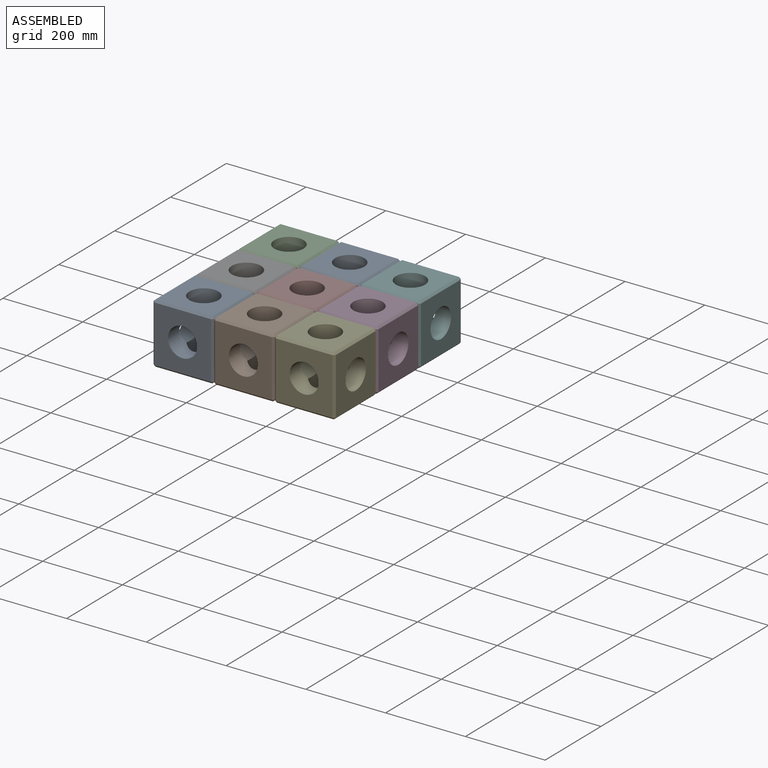
[diagram: assembled view]
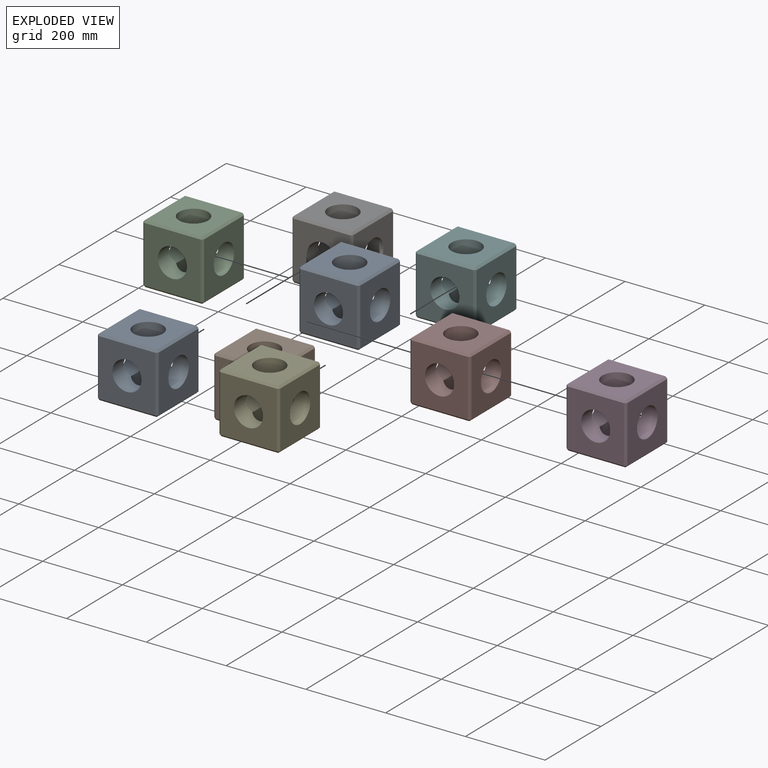
[diagram: exploded view]
GUIDED TOUR — MATED ASSEMBLY (Onshape document 835b094d6151cfeadd398ebb, AutoMate assembly 835b094d6151cfeadd398ebb_06ab03ab5000fc5c8c453f5f_b37c91ebca5f260ee9e40abb_default)

This assembly has 9 components, labeled P0..P8 below (a component is one placed occurrence of a part; the same part can appear more than once), held together by 24 mates. A mate is a constraint between two components; its type names the relative motion it leaves free:
  PLANAR — leaves sliding in the plane through the listed point (normal = the listed direction) and rotation about that normal free.
Axis/direction vectors are unit vectors and 'through' points are millimeter coordinates, both in the assembly's world frame.

MATES
  1. PLANAR "Planar 1": P0 <-> P6, direction (0.000, 1.000, 0.000) through (-519.58, -77.51, 768.10) mm
  2. PLANAR "Planar 10": P4 <-> P1, direction (0.000, -1.000, 0.000) through (-214.78, -229.91, 768.10) mm
  3. PLANAR "Planar 11": P4 <-> P1, direction (0.000, 0.000, 1.000) through (-214.78, -224.91, 773.10) mm
  4. PLANAR "Planar 21": P2 <-> P8, direction (1.000, 0.000, 0.000) through (-372.18, 222.29, 768.10) mm
  5. PLANAR "Planar 13": P3 <-> P7, direction (-1.000, 0.000, 0.000) through (-219.78, 69.89, 768.10) mm
  6. PLANAR "Planar 20": P2 <-> P8, direction (0.000, 0.000, 1.000) through (-377.18, 222.29, 773.10) mm
  7. PLANAR "Planar 5": P7 <-> P6, direction (0.000, 1.000, 0.000) through (-367.18, 74.89, 768.10) mm
  8. PLANAR "Planar 14": P3 <-> P4, direction (0.000, -1.000, 0.000) through (-72.38, -77.51, 768.10) mm
  9. PLANAR "Planar 9": P1 <-> P0, direction (-1.000, 0.000, 0.000) through (-372.18, -82.51, 768.10) mm
  10. PLANAR "Planar 8": P1 <-> P7, direction (0.000, 0.000, 1.000) through (-367.18, -82.51, 773.10) mm
  11. PLANAR "Planar 22": P8 <-> P5, direction (1.000, 0.000, 0.000) through (-219.78, 79.89, 768.10) mm
  12. PLANAR "Planar 24": P8 <-> P5, direction (0.000, 1.000, 0.000) through (-224.78, 227.29, 768.10) mm
  13. PLANAR "Planar 6": P7 <-> P6, direction (-1.000, 0.000, 0.000) through (-372.18, 69.89, 768.10) mm
  14. PLANAR "Planar 16": P5 <-> P3, direction (0.000, -1.000, 0.000) through (-72.38, 74.89, 768.10) mm
  15. PLANAR "Planar 12": P4 <-> P1, direction (-1.000, 0.000, 0.000) through (-219.78, -224.91, 768.10) mm
  16. PLANAR "Planar 2": P0 <-> P6, direction (1.000, 0.000, 0.000) through (-372.18, -82.51, 625.70) mm
  17. PLANAR "Planar 19": P2 <-> P8, direction (0.000, 1.000, 0.000) through (-377.18, 227.29, 768.10) mm
  18. PLANAR "Planar 3": P6 <-> P0, direction (0.000, 0.000, 1.000) through (-519.58, -72.51, 773.10) mm
  19. PLANAR "Planar 17": P5 <-> P3, direction (1.000, 0.000, 0.000) through (-67.38, 79.89, 768.10) mm
  20. PLANAR "Planar 18": P5 <-> P3, direction (0.000, 0.000, 1.000) through (-72.38, 79.89, 773.10) mm
  21. PLANAR "Planar 4": P6 <-> P7, direction (0.000, 0.000, 1.000) through (-377.18, 69.89, 773.10) mm
  22. PLANAR "Planar 23": P8 <-> P5, direction (0.000, 0.000, 1.000) through (-224.78, 79.89, 773.10) mm
  23. PLANAR "Planar 15": P3 <-> P7, direction (0.000, 0.000, 1.000) through (-214.78, 69.89, 773.10) mm
  24. PLANAR "Planar 7": P1 <-> P7, direction (0.000, 1.000, 0.000) through (-367.18, -77.51, 768.10) mm

ASSEMBLY ORDER
  1. P8 — the base component [order verified]
  2. P7 [order verified]
  3. P1 [order verified]
  4. P4 [order verified]
  5. P3 [order verified]
  6. P5 [order verified]
  7. P2 [order verified]
  8. P6 [order verified]
  9. P0 [order verified]
Order-tag legend:
  [order verified] — this step's position reverses a verified removal order: the component was checked to insert without passing through the ones already placed.

Of the 9 components, 9 carry the full construction recipe — the FeatureScript program that regenerates the part's solid from scratch; the rest are supplied as boundary geometry only.
Each toured component is shown spotlighted twice — in the assembled view, then in the exploded view, where a leader line traces a displaced component back to its assembled socket (saturated green if recipe-attached, orange if geometry-only; every other component desaturated gray) — followed by its recipe or geometry summary and the mates that hold it.
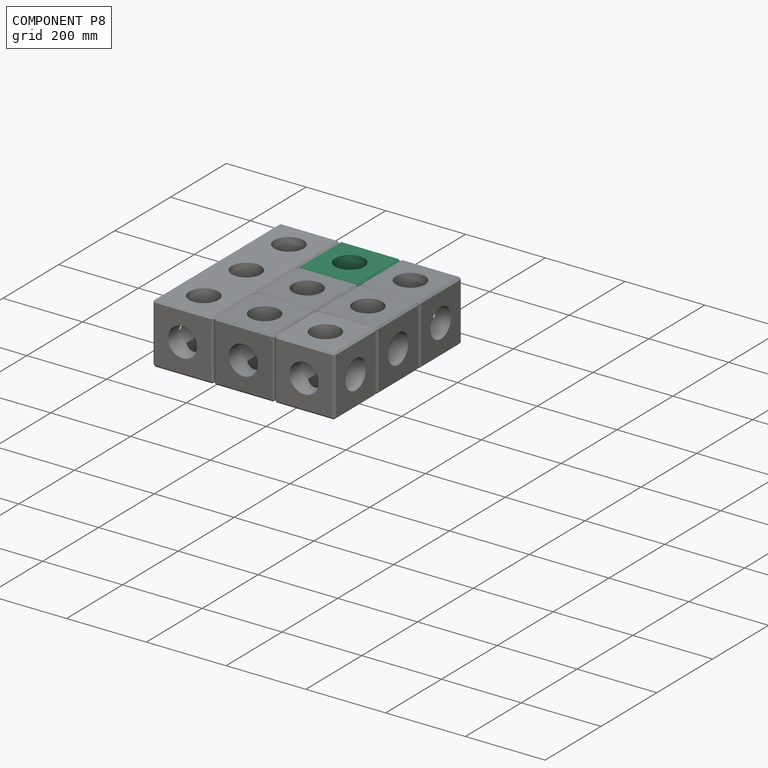
[diagram: component P8 — assembled]
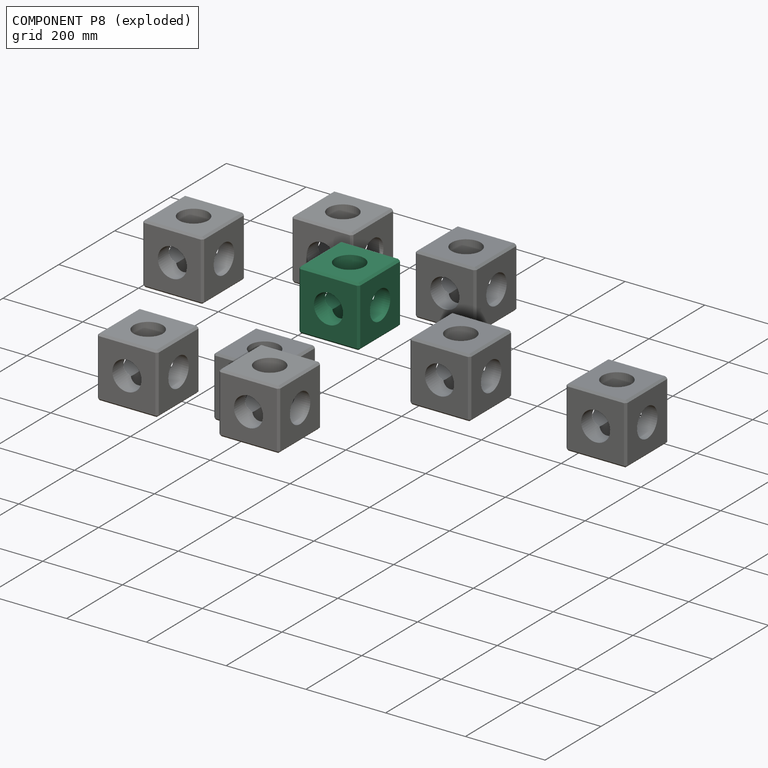
[diagram: component P8 — exploded]
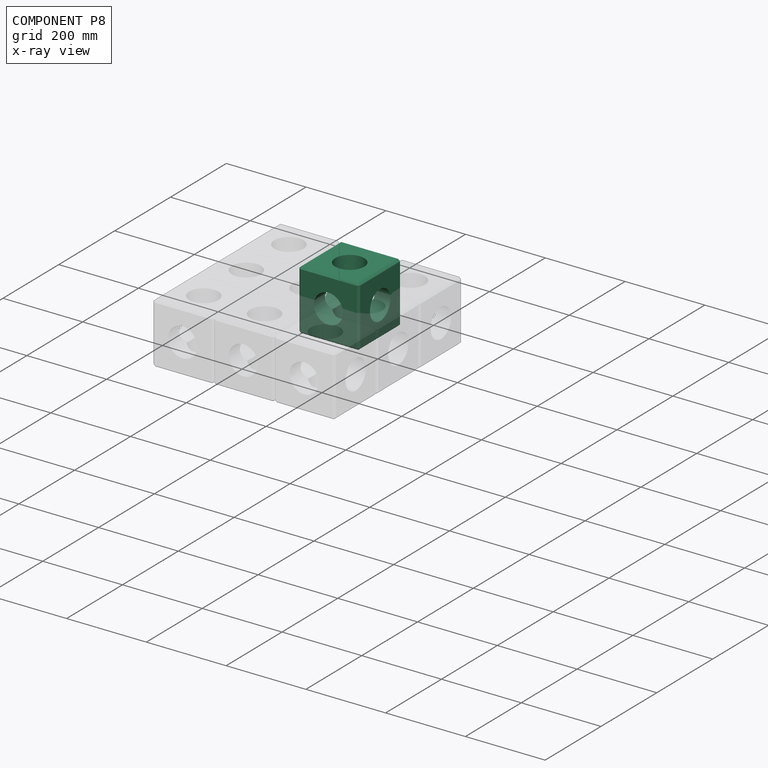
[diagram: component P8 — x-ray view]
COMPONENT P8 — same part as P0 (CADFS 00886171); its construction recipe is shown at P0.
Held by: PLANAR mate "Planar 21" to P2; PLANAR mate "Planar 20" to P2; PLANAR mate "Planar 22" to P5; PLANAR mate "Planar 24" to P5; PLANAR mate "Planar 19" to P2; PLANAR mate "Planar 23" to P5.
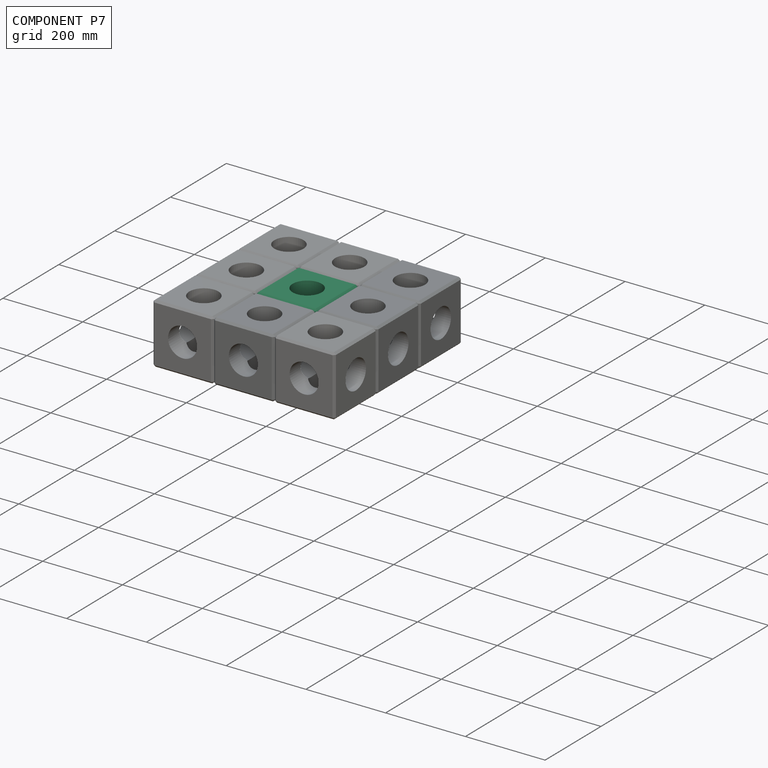
[diagram: component P7 — assembled]
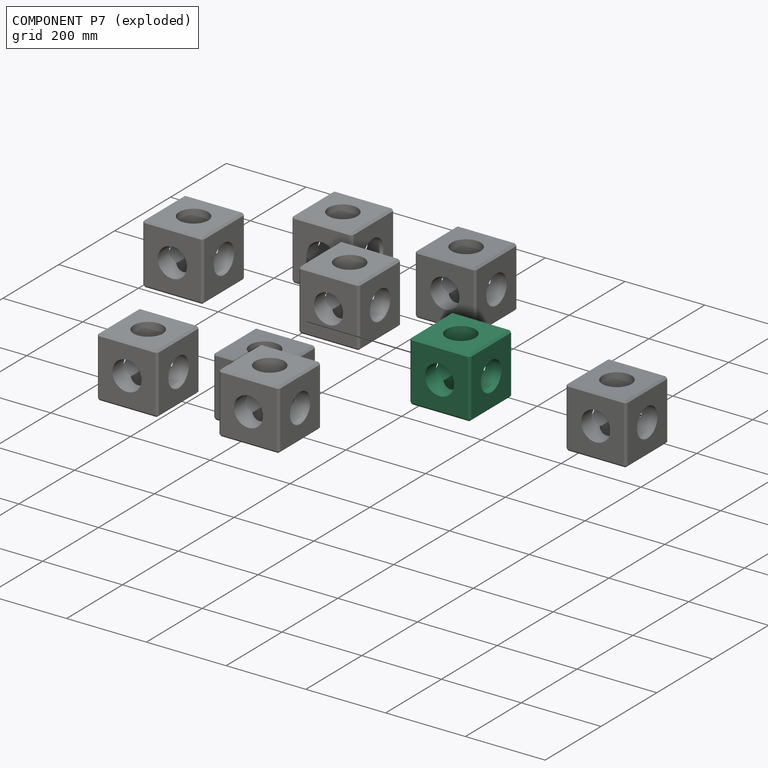
[diagram: component P7 — exploded]
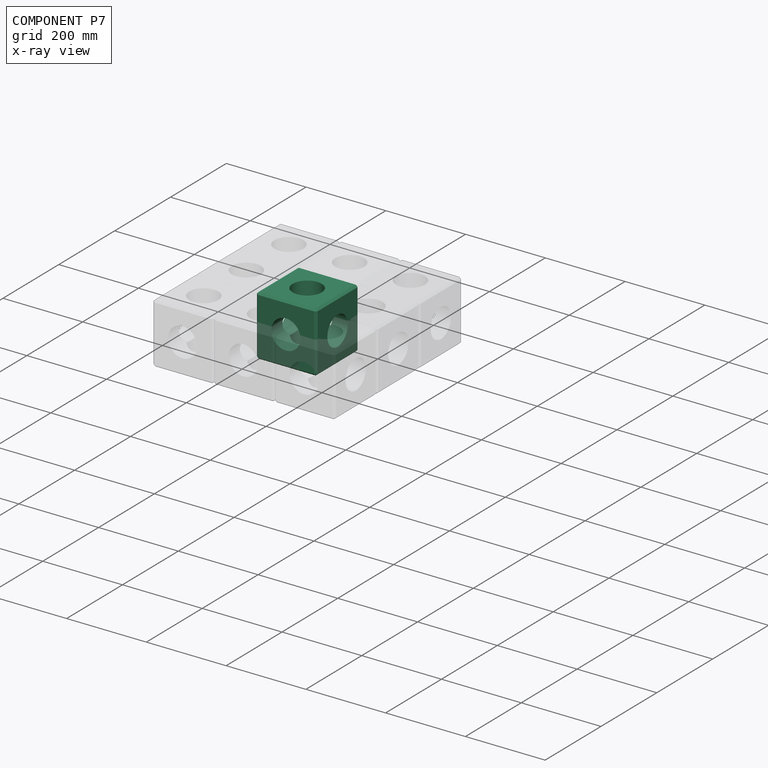
[diagram: component P7 — x-ray view]
COMPONENT P7 — same part as P0 (CADFS 00886171); its construction recipe is shown at P0.
Held by: PLANAR mate "Planar 13" to P3; PLANAR mate "Planar 5" to P6; PLANAR mate "Planar 8" to P1; PLANAR mate "Planar 6" to P6; PLANAR mate "Planar 4" to P6; PLANAR mate "Planar 15" to P3; PLANAR mate "Planar 7" to P1.
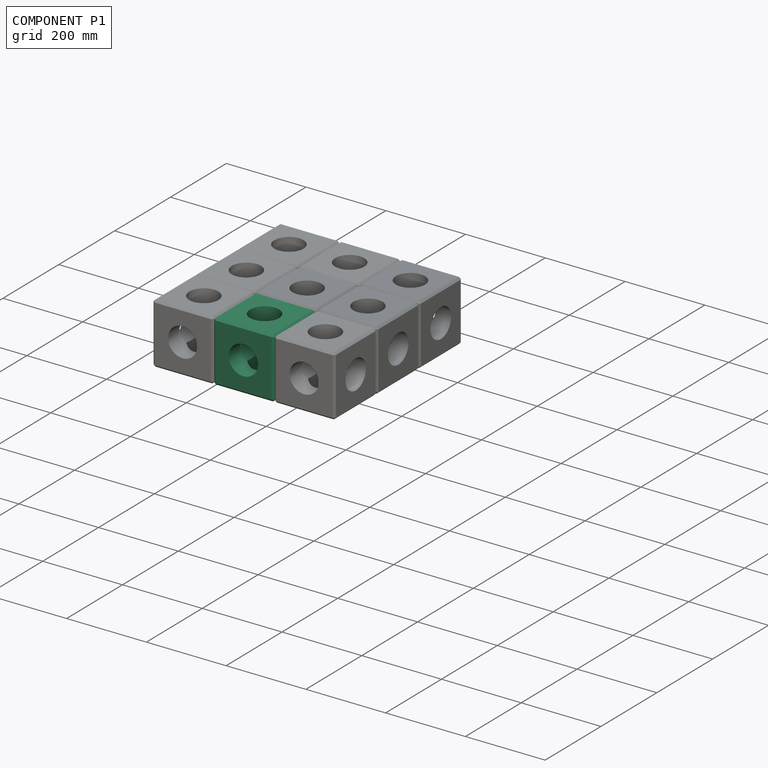
[diagram: component P1 — assembled]
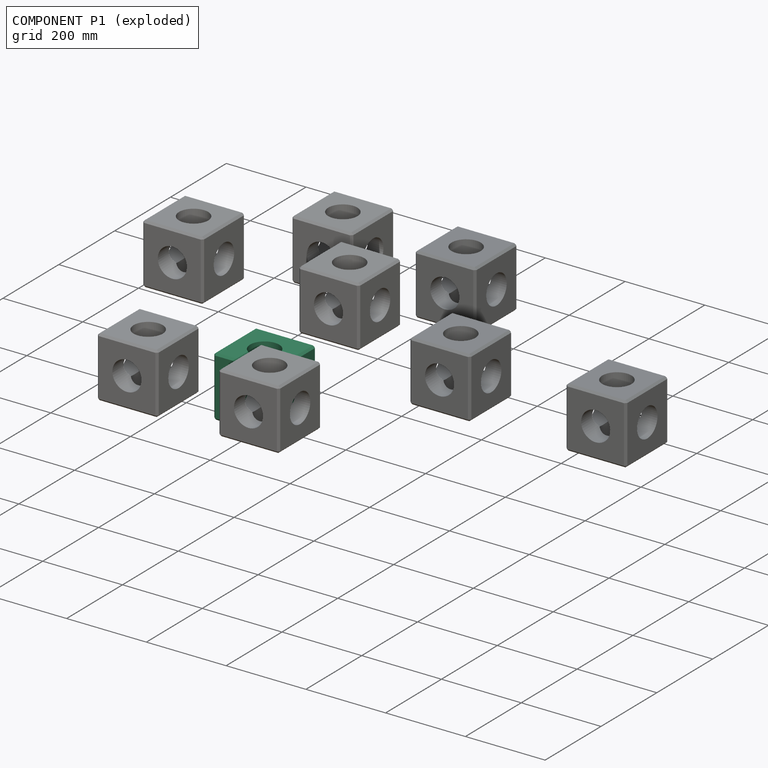
[diagram: component P1 — exploded]
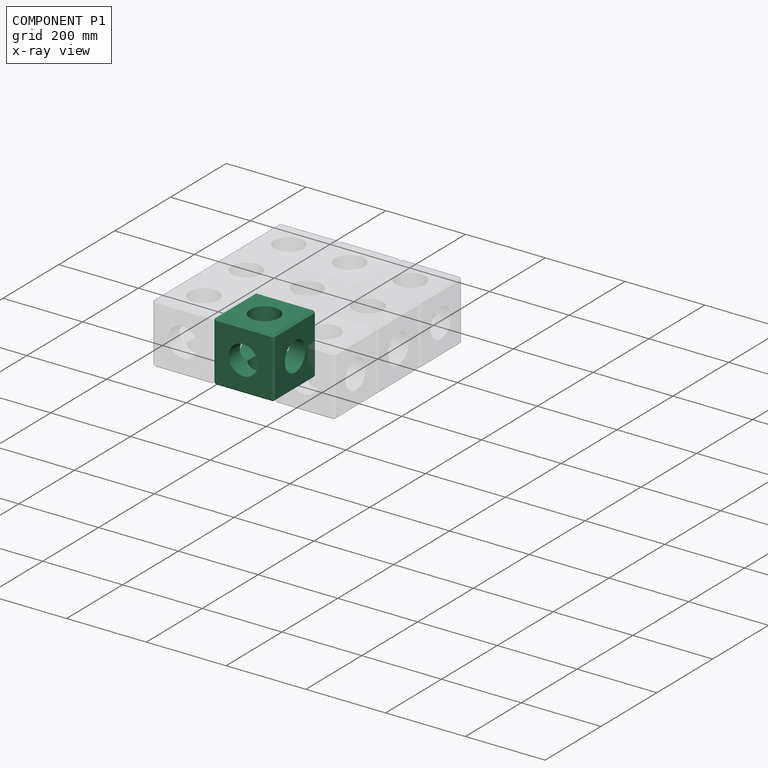
[diagram: component P1 — x-ray view]
COMPONENT P1 — same part as P0 (CADFS 00886171); its construction recipe is shown at P0.
Held by: PLANAR mate "Planar 10" to P4; PLANAR mate "Planar 11" to P4; PLANAR mate "Planar 9" to P0; PLANAR mate "Planar 8" to P7; PLANAR mate "Planar 12" to P4; PLANAR mate "Planar 7" to P7.
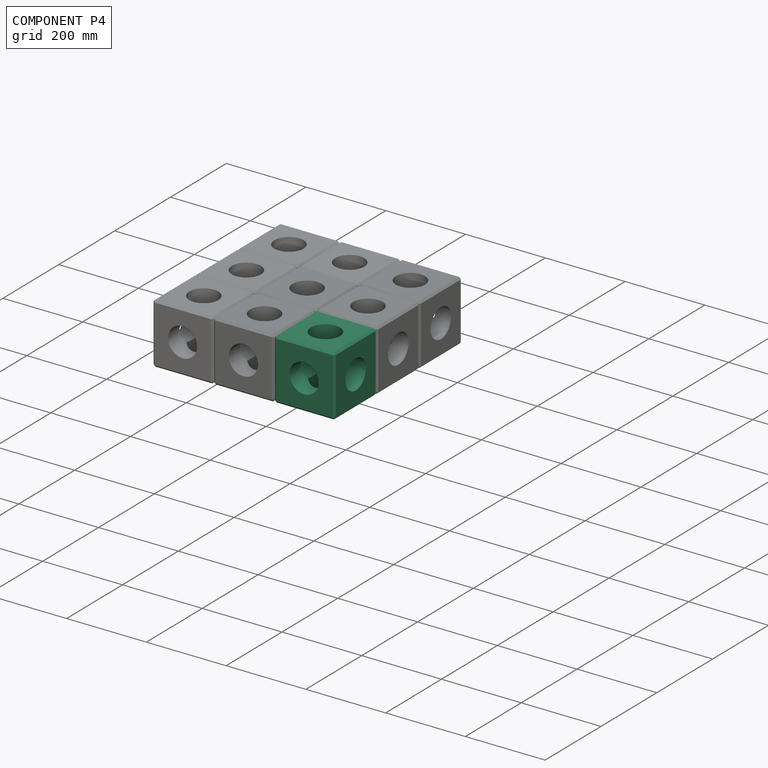
[diagram: component P4 — assembled]
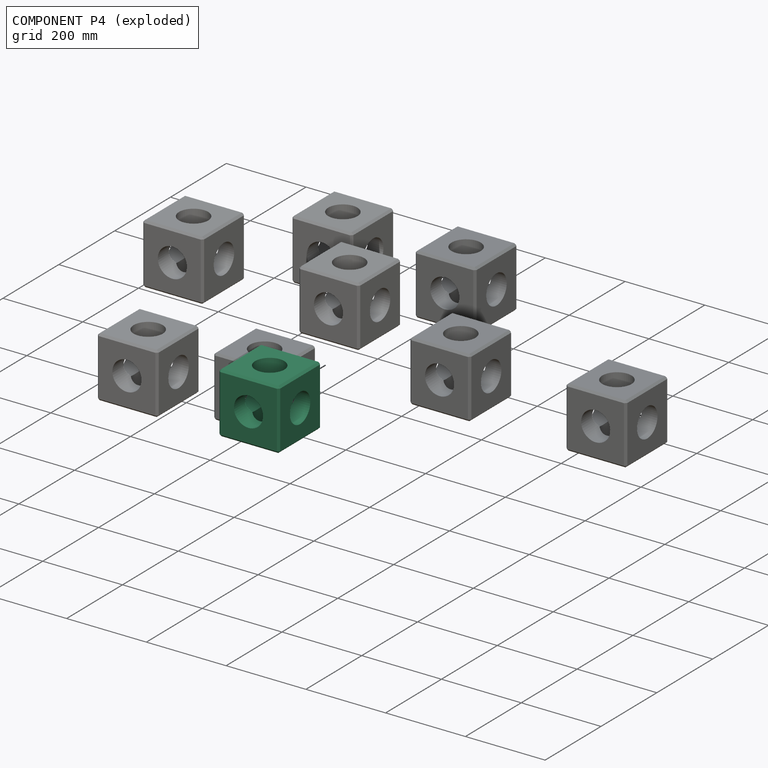
[diagram: component P4 — exploded]
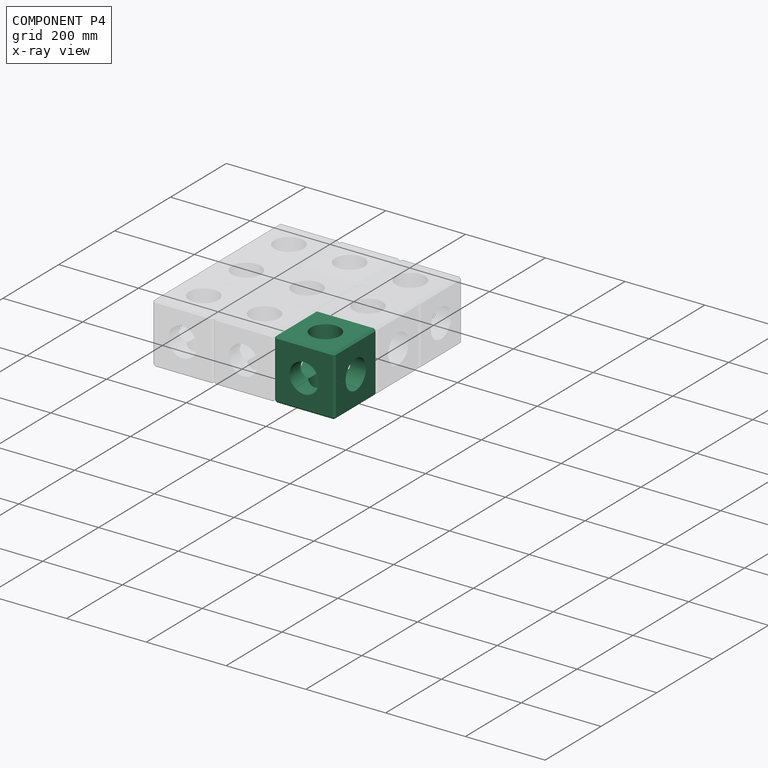
[diagram: component P4 — x-ray view]
COMPONENT P4 — same part as P0 (CADFS 00886171); its construction recipe is shown at P0.
Held by: PLANAR mate "Planar 10" to P1; PLANAR mate "Planar 11" to P1; PLANAR mate "Planar 14" to P3; PLANAR mate "Planar 12" to P1.
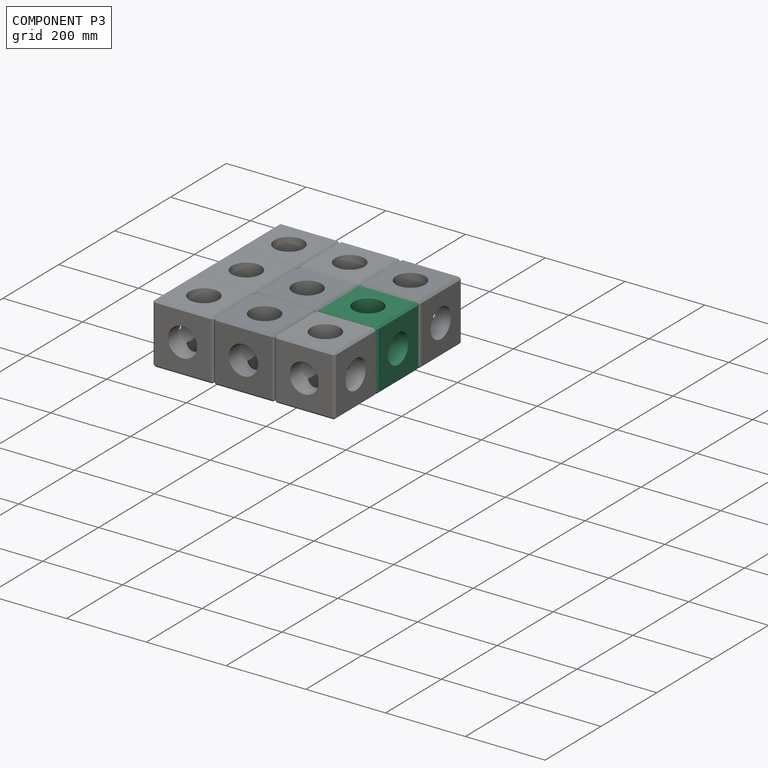
[diagram: component P3 — assembled]
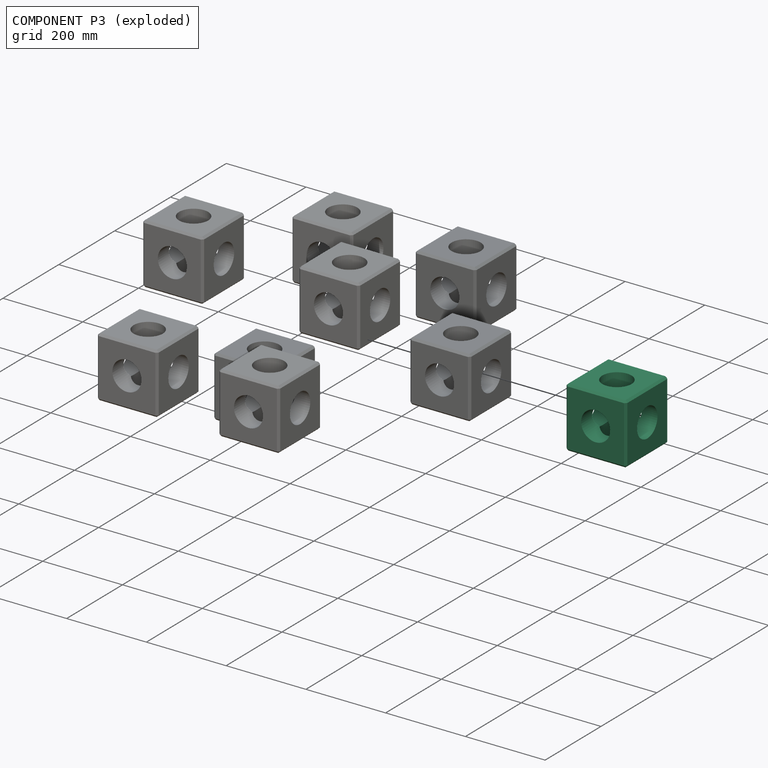
[diagram: component P3 — exploded]
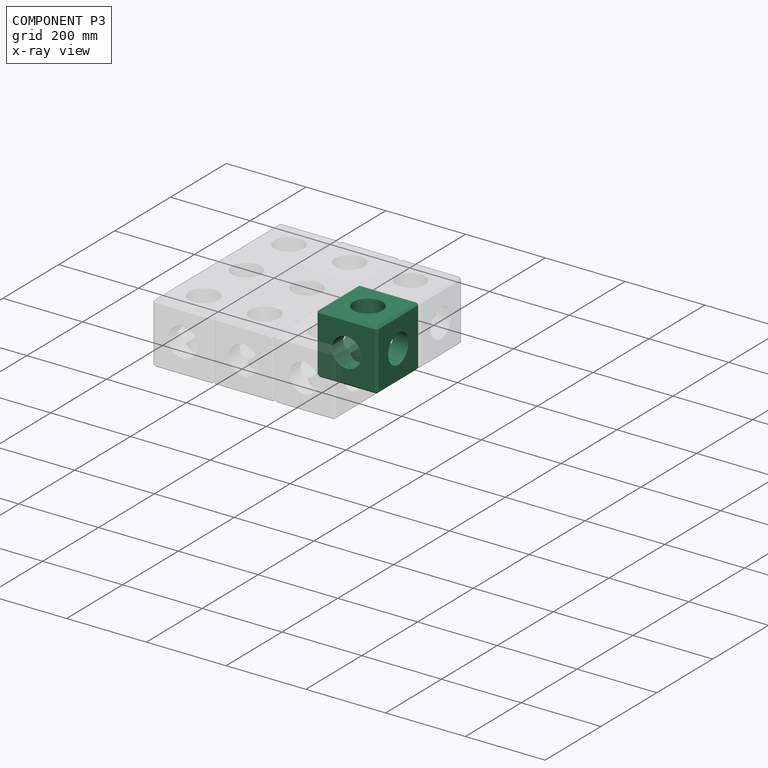
[diagram: component P3 — x-ray view]
COMPONENT P3 — same part as P0 (CADFS 00886171); its construction recipe is shown at P0.
Held by: PLANAR mate "Planar 13" to P7; PLANAR mate "Planar 14" to P4; PLANAR mate "Planar 16" to P5; PLANAR mate "Planar 17" to P5; PLANAR mate "Planar 18" to P5; PLANAR mate "Planar 15" to P7.
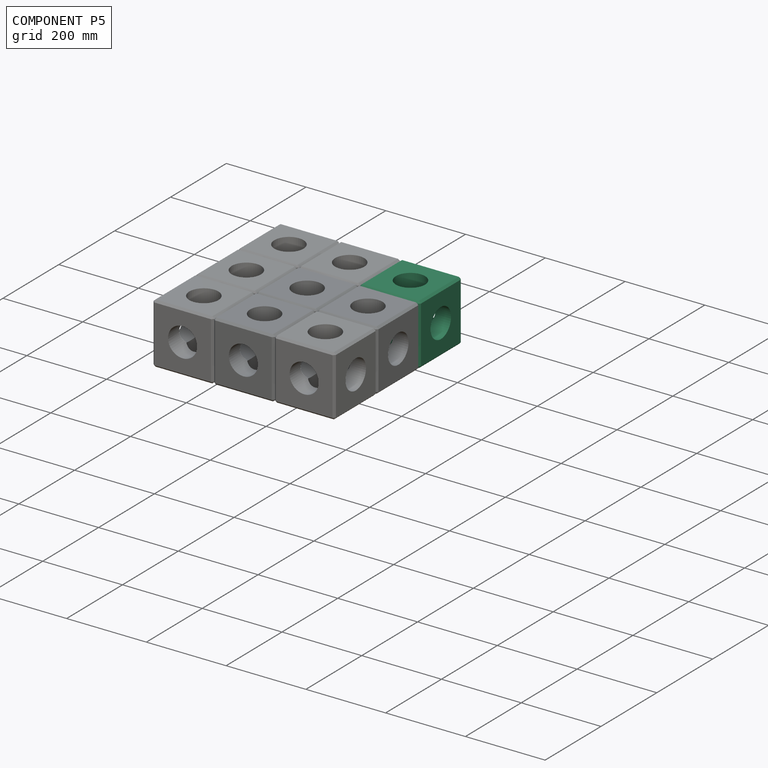
[diagram: component P5 — assembled]
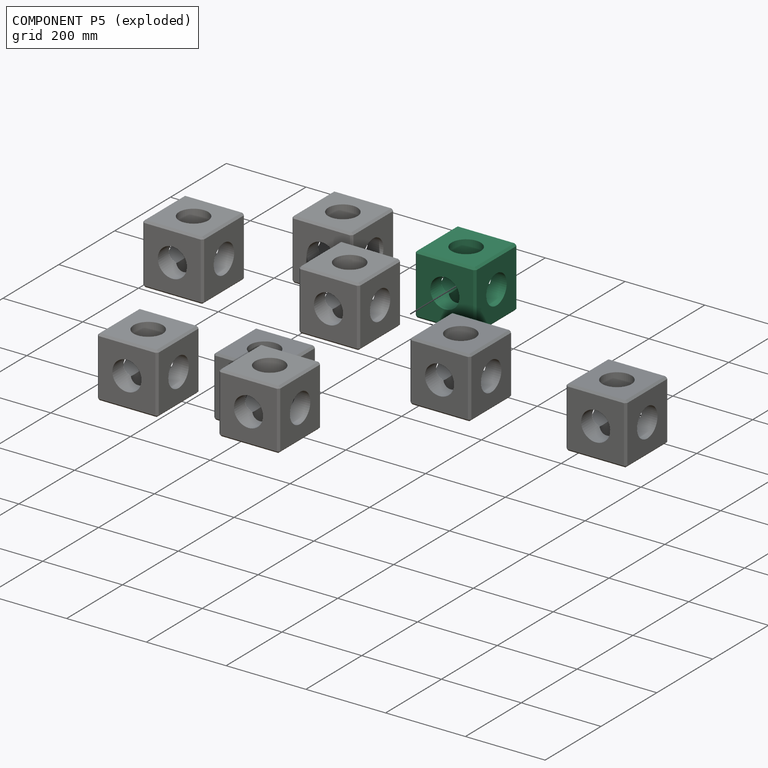
[diagram: component P5 — exploded]
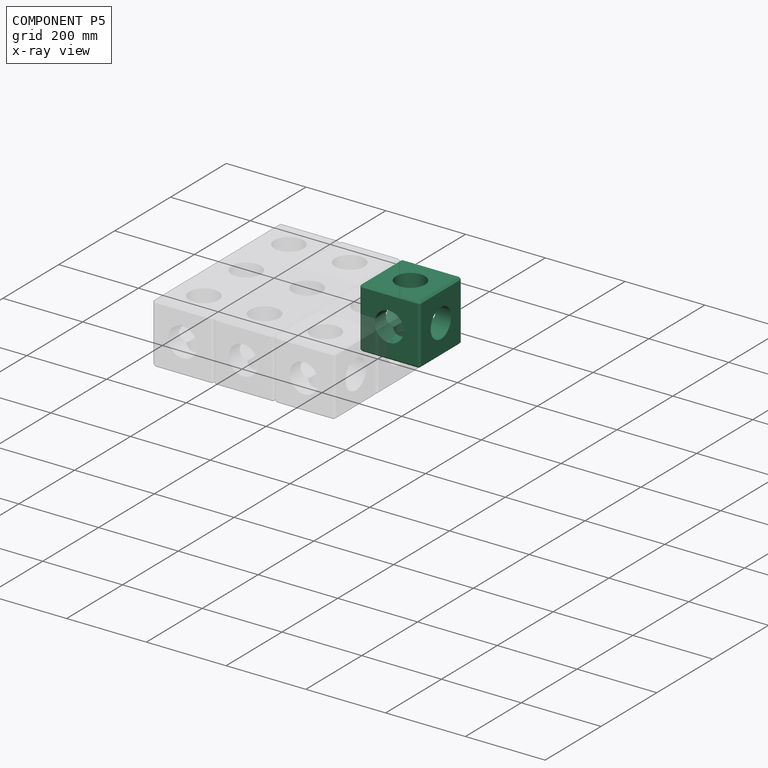
[diagram: component P5 — x-ray view]
COMPONENT P5 — same part as P0 (CADFS 00886171); its construction recipe is shown at P0.
Held by: PLANAR mate "Planar 22" to P8; PLANAR mate "Planar 24" to P8; PLANAR mate "Planar 16" to P3; PLANAR mate "Planar 17" to P3; PLANAR mate "Planar 18" to P3; PLANAR mate "Planar 23" to P8.
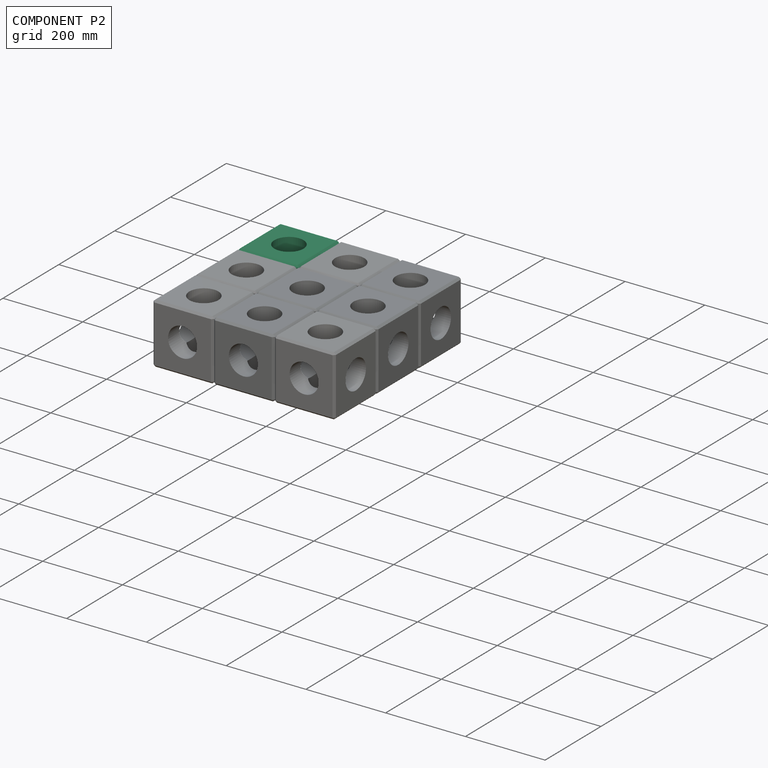
[diagram: component P2 — assembled]
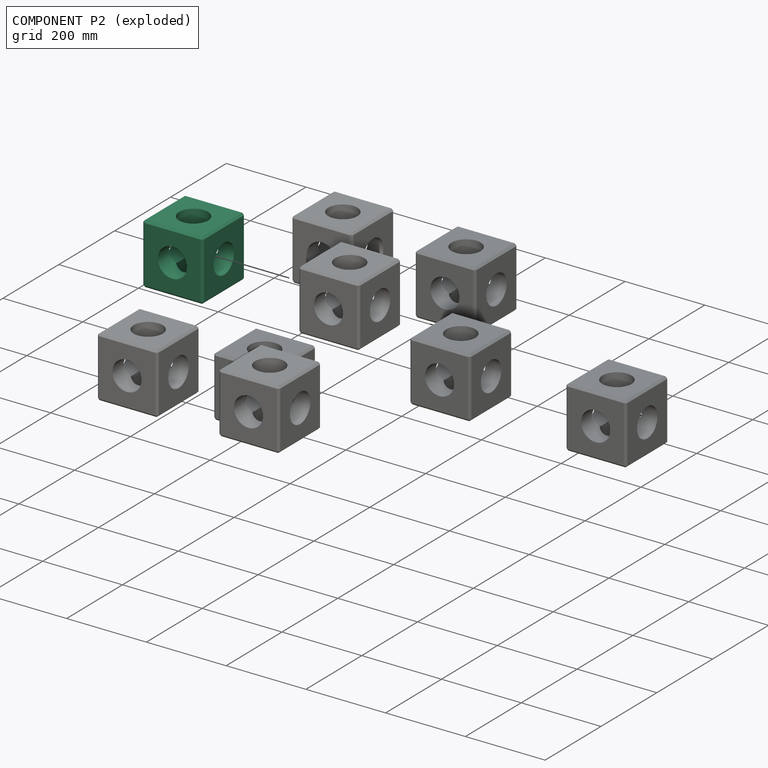
[diagram: component P2 — exploded]
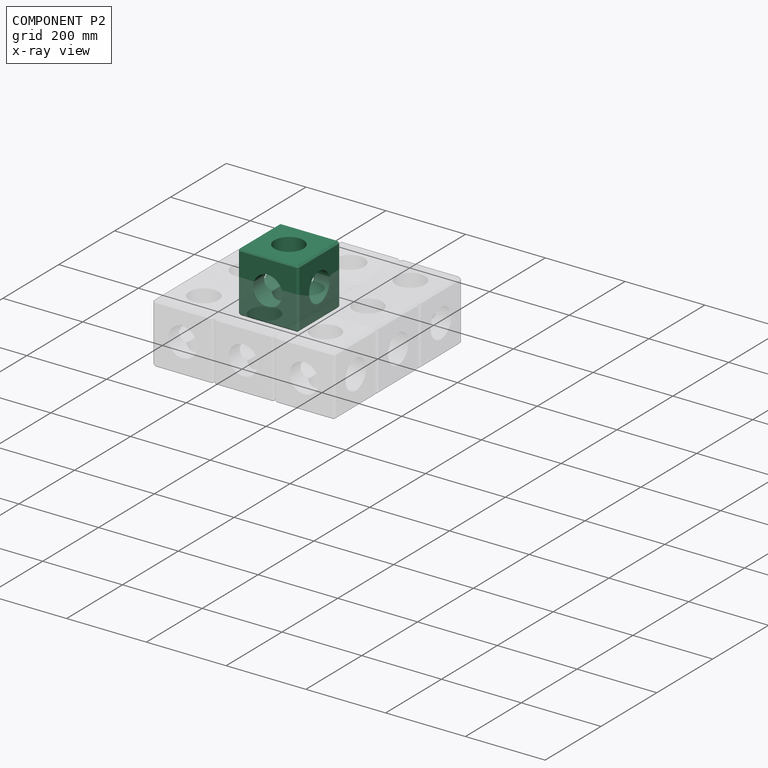
[diagram: component P2 — x-ray view]
COMPONENT P2 — same part as P0 (CADFS 00886171); its construction recipe is shown at P0.
Held by: PLANAR mate "Planar 21" to P8; PLANAR mate "Planar 20" to P8; PLANAR mate "Planar 19" to P8.
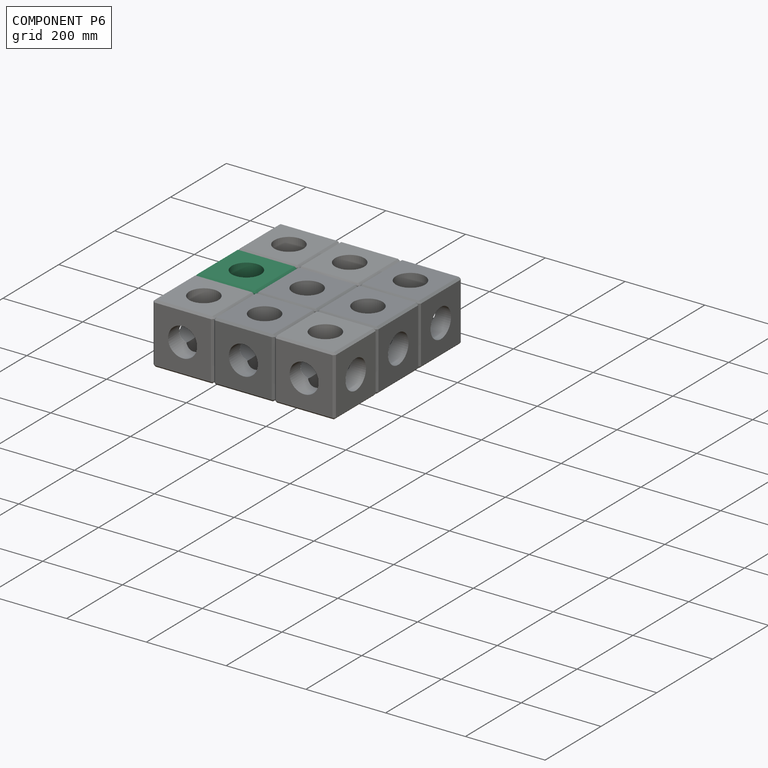
[diagram: component P6 — assembled]
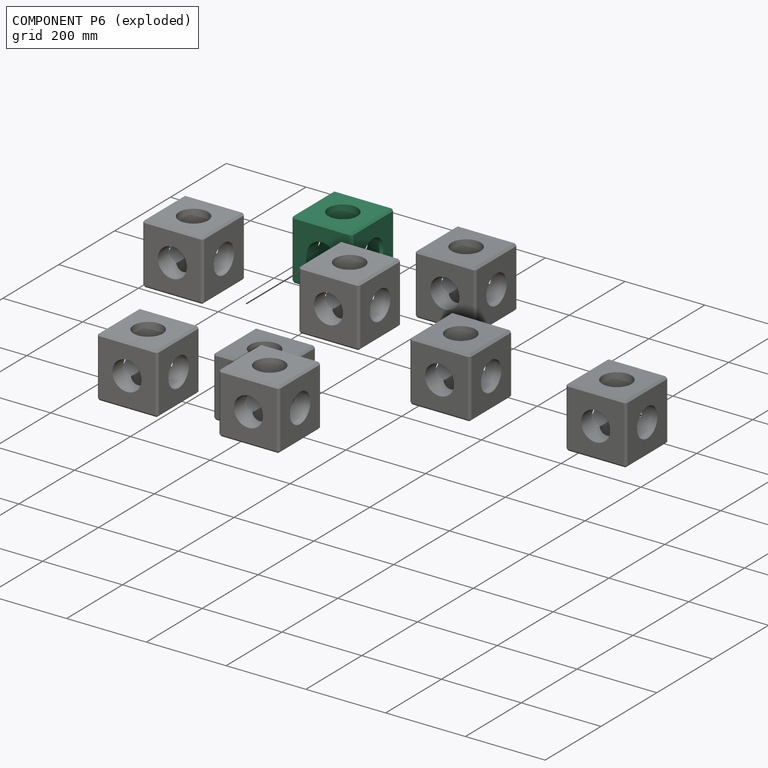
[diagram: component P6 — exploded]
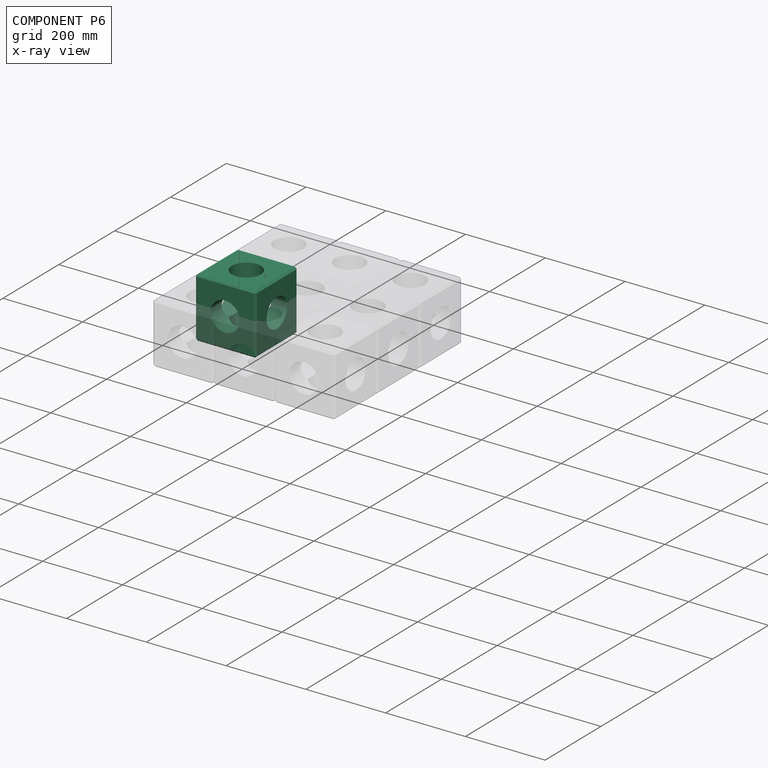
[diagram: component P6 — x-ray view]
COMPONENT P6 — same part as P0 (CADFS 00886171); its construction recipe is shown at P0.
Held by: PLANAR mate "Planar 1" to P0; PLANAR mate "Planar 5" to P7; PLANAR mate "Planar 6" to P7; PLANAR mate "Planar 2" to P0; PLANAR mate "Planar 3" to P0; PLANAR mate "Planar 4" to P7.
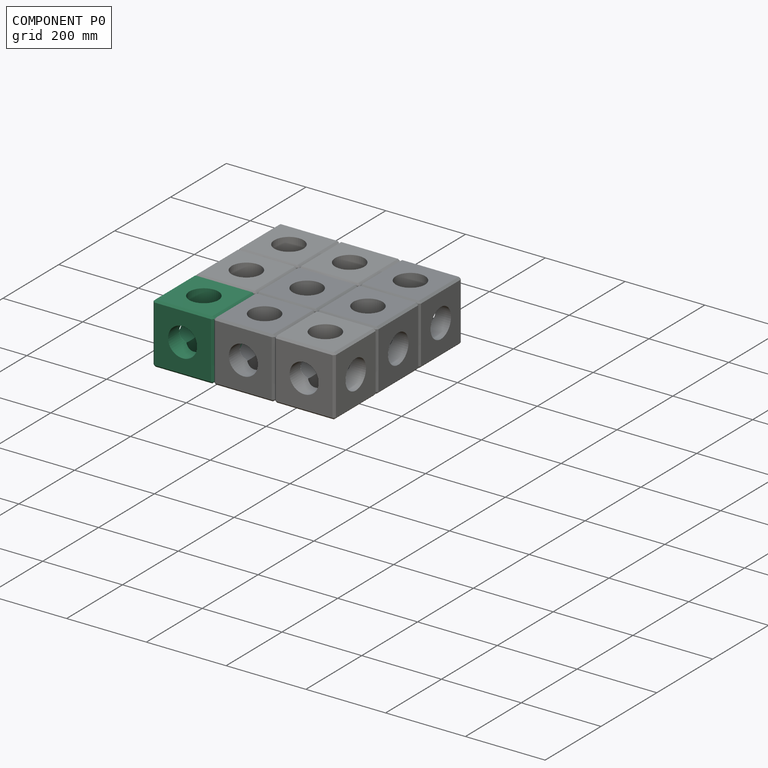
[diagram: component P0 — assembled]
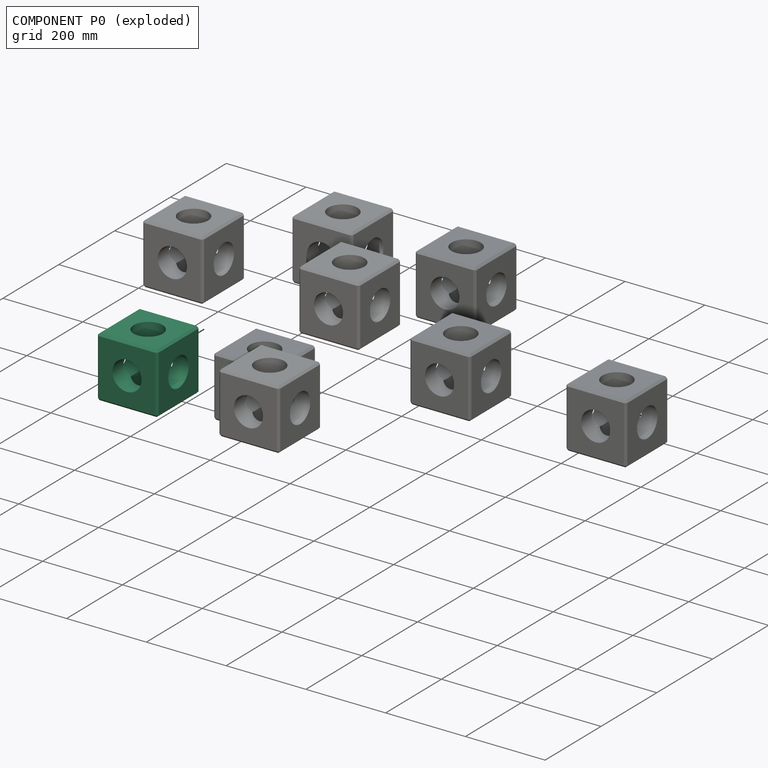
[diagram: component P0 — exploded]
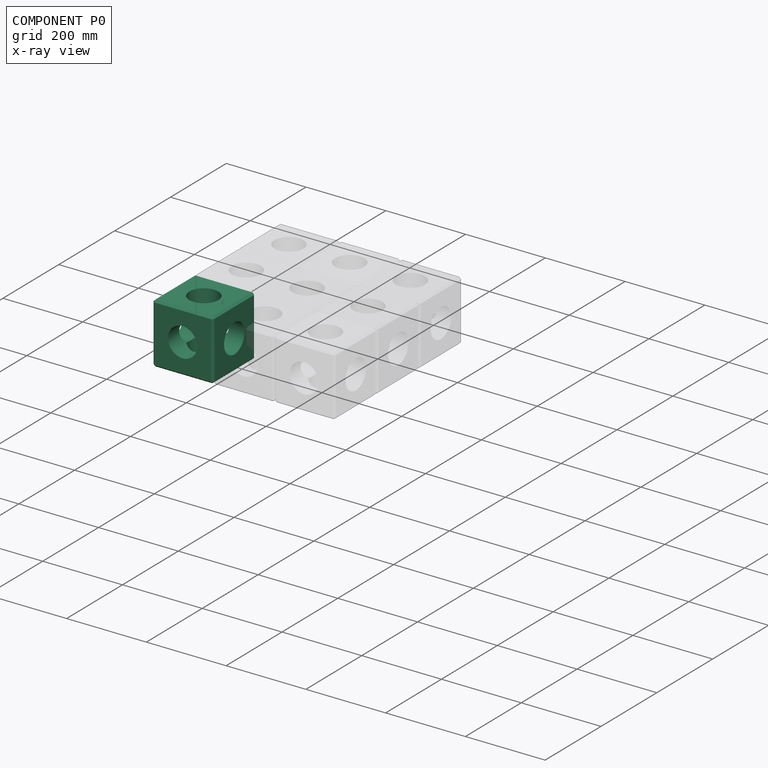
[diagram: component P0 — x-ray view]
COMPONENT P0 — recipe-attached (CADFS 00886171, mesh-verified: the recipe's output STEP matches this component's geometry to below the mesh-comparison resolution (tessellation chordal tolerance ~0.396 mm)).
Held by: PLANAR mate "Planar 1" to P6; PLANAR mate "Planar 9" to P1; PLANAR mate "Planar 2" to P6; PLANAR mate "Planar 3" to P6.
Construction recipe (FeatureScript — the CAD program that rebuilds this solid; sketch coordinates are in the units given by the * unit suffixes, e.g. mm):

FeatureScript 1511;
import(path : "onshape/std/geometry.fs", version : "1511.0");
import(path : "onshape/std/common.fs", version : "1511.0");
const mm = millimeter;
const VERTEX = EntityType.VERTEX;
const EDGE = EntityType.EDGE;
const FACE = EntityType.FACE;
const BODY = EntityType.BODY;
function v(x, y){return vector(x, y);}
function OD(order){return orderDisambiguation(order);}
function OSD(set){return originalSetDisambiguation(set);}
function TD(topology){return topologyDisambiguation(topology);}
function TDD(query){return trueDependencyDisambiguation(query);}
function sQuery(a, b, c) {return sketchEntityQuery(a, b, c);}

annotation { "Feature Type Name" : "Feature", "Feature Type Description" : "" }
export const myFeature = defineFeature(function(context is Context, id is Id, definition is map)
    precondition{}
    {
        {
            var Q0;
            Q0=qCreatedBy(makeId("Front.planeOp"),FACE);
            var sketch = newSketch(context, id + "F0", { "sketchPlane" : qUnion([Q0])});
            skLineSegment(sketch, "E0.bottom", {"start": v(-76.2, 76.2) * mm, "end": v(76.2, 76.2) * mm});
            skLineSegment(sketch, "E0.top", {"start": v(-76.2, -76.2) * mm, "end": v(76.2, -76.2) * mm});
            skLineSegment(sketch, "E0.left", {"start": v(-76.2, 76.2) * mm, "end": v(-76.2, -76.2) * mm});
            skLineSegment(sketch, "E0.right", {"start": v(76.2, 76.2) * mm, "end": v(76.2, -76.2) * mm});
            skSolve(sketch);
        }
        {
            var Q0;
            Q0=makeQuery(id+"F0.imprint","IMPRINT",FACE,{"disambiguationData":[TD([[makeQuery(id+"F0.imprint","IMPRINT",EDGE,{"derivedFrom":sQuery(id+"F0.wireOp",EDGE,"E0.bottom")}),-1.0]])]});
            extrude(context, id + "F1", {"entities" : qUnion([Q0]), "depth" : 152.4 * mm, "offsetDistance" : 25.4 * mm});
        }
        {
            var Q0;
            Q0=makeQuery(id+"F1.opExtrude","CAP_EDGE",EDGE,{"disambiguationData":[OSD([sQuery(id+"F0.wireOp",EDGE,"E0.bottom")])],"isStart":false});
            var Q1;
            Q1=makeQuery(id+"F1.opExtrude","SWEPT_EDGE",EDGE,{"disambiguationData":[OSD([sQuery(id+"F0.wireOp",EDGE,"E0.bottom"),sQuery(id+"F0.wireOp",EDGE,"E0.left")])]});
            var Q2;
            Q2=makeQuery(id+"F1.opExtrude","SWEPT_EDGE",EDGE,{"disambiguationData":[OSD([sQuery(id+"F0.wireOp",EDGE,"E0.bottom"),sQuery(id+"F0.wireOp",EDGE,"E0.right")])]});
            var Q3;
            Q3=makeQuery(id+"F1.opExtrude","CAP_EDGE",EDGE,{"disambiguationData":[OSD([sQuery(id+"F0.wireOp",EDGE,"E0.bottom")])],"isStart":true});
            var Q4;
            Q4=makeQuery(id+"F1.opExtrude","CAP_EDGE",EDGE,{"disambiguationData":[OSD([sQuery(id+"F0.wireOp",EDGE,"E0.right")])],"isStart":false});
            var Q5;
            Q5=makeQuery(id+"F1.opExtrude","CAP_EDGE",EDGE,{"disambiguationData":[OSD([sQuery(id+"F0.wireOp",EDGE,"E0.left")])],"isStart":false});
            var Q6;
            Q6=makeQuery(id+"F1.opExtrude","CAP_EDGE",EDGE,{"disambiguationData":[OSD([sQuery(id+"F0.wireOp",EDGE,"E0.top")])],"isStart":false});
            var Q7;
            Q7=makeQuery(id+"F1.opExtrude","SWEPT_EDGE",EDGE,{"disambiguationData":[OSD([sQuery(id+"F0.wireOp",EDGE,"E0.top"),sQuery(id+"F0.wireOp",EDGE,"E0.right")])]});
            var Q8;
            Q8=makeQuery(id+"F1.opExtrude","CAP_EDGE",EDGE,{"disambiguationData":[OSD([sQuery(id+"F0.wireOp",EDGE,"E0.right")])],"isStart":true});
            var Q9;
            Q9=makeQuery(id+"F1.opExtrude","CAP_EDGE",EDGE,{"disambiguationData":[OSD([sQuery(id+"F0.wireOp",EDGE,"E0.left")])],"isStart":true});
            var Q10;
            Q10=makeQuery(id+"F1.opExtrude","CAP_EDGE",EDGE,{"disambiguationData":[OSD([sQuery(id+"F0.wireOp",EDGE,"E0.top")])],"isStart":true});
            var Q11;
            Q11=makeQuery(id+"F1.opExtrude","SWEPT_EDGE",EDGE,{"disambiguationData":[OSD([sQuery(id+"F0.wireOp",EDGE,"E0.top"),sQuery(id+"F0.wireOp",EDGE,"E0.left")])]});
            chamfer(context, id + "F2", {"entities" : qUnion([Q0, Q1, Q2, Q3, Q4, Q5, Q6, Q7, Q8, Q9, Q10, Q11]), "width" : 5 * mm, "tangentPropagation" : true});
        }
        {
            var Q0;
            Q0=makeQuery(id+"F1.opExtrude","CAP_FACE",FACE,{"disambiguationData":[OSD([sQuery(id+"F0.wireOp",EDGE,"E0.bottom"),sQuery(id+"F0.wireOp",EDGE,"E0.top"),sQuery(id+"F0.wireOp",EDGE,"E0.left"),sQuery(id+"F0.wireOp",EDGE,"E0.right")])],"isStart":true});
            var sketch = newSketch(context, id + "F3", { "sketchPlane" : qUnion([Q0])});
            skCircle(sketch, "E1", {"center": v(0, 0) * mm, "radius": 36.5 * mm});
            skLineSegment(sketch, "E2", {"start": v(71.2, -71.2) * mm, "end": v(-71.2, 71.2) * mm, "construction": true});
            skSolve(sketch);
        }
        {
            var Q0;
            Q0=makeQuery(id+"F3.imprint","IMPRINT",FACE,{"disambiguationData":[TD([[makeQuery(id+"F3.imprint","IMPRINT",EDGE,{"derivedFrom":sQuery(id+"F3.wireOp",EDGE,"E1")}),1.0]])]});
            extrude(context, id + "F4", {"entities" : qUnion([Q0]), "operationType" : NewBodyOperationType.REMOVE, "endBound" : BoundingType.THROUGH_ALL, "oppositeDirection" : true, "depth" : 25 * mm, "offsetDistance" : 25 * mm});
        }
        {
            var Q0;
            Q0=makeQuery(id+"F1.opExtrude","SWEPT_FACE",FACE,{"disambiguationData":[OSD([sQuery(id+"F0.wireOp",EDGE,"E0.top")])]});
            var sketch = newSketch(context, id + "F5", { "sketchPlane" : qUnion([Q0])});
            skPoint(sketch, "E3", {"position": v(0, 76.2) * mm});
            skLineSegment(sketch, "E4", {"start": v(-71.2, 147.4) * mm, "end": v(71.2, 5) * mm, "construction": true});
            skSolve(sketch);
        }
        {
            var Q0;
            Q0=makeQuery(id+"F1.opExtrude","SWEPT_FACE",FACE,{"disambiguationData":[OSD([sQuery(id+"F0.wireOp",EDGE,"E0.left")])]});
            var sketch = newSketch(context, id + "F6", { "sketchPlane" : qUnion([Q0])});
            skPoint(sketch, "E5", {"position": v(76.2, 0) * mm});
            skLineSegment(sketch, "E6", {"start": v(147.4, 71.2) * mm, "end": v(5, -71.2) * mm, "construction": true});
            skSolve(sketch);
        }
        {
            var Q0;
            Q0=sQuery(id+"F6.wireOp",VERTEX,"E5");
            var Q1;
            Q1=sQuery(id+"F5.wireOp",VERTEX,"E3");
            var Q2;
            Q2=makeQuery(id+"F1.opExtrude","SWEPT_BODY",BODY,{"disambiguationData":[OSD([sQuery(id+"F0.wireOp",EDGE,"E0.bottom"),sQuery(id+"F0.wireOp",EDGE,"E0.top"),sQuery(id+"F0.wireOp",EDGE,"E0.left"),sQuery(id+"F0.wireOp",EDGE,"E0.right")])]});
            hole(context, id + "F7", {"style" : HoleStyle.SIMPLE, "endStyle" : HoleEndStyle.THROUGH, "holeDiameter" : 73 * mm, "majorDiameter" : 5 * mm, "isTappedThrough" : true, "tappedDepth" : 12 * mm, "tapClearance" : 3, "locations" : qUnion([Q0, Q1]), "scope" : qUnion([Q2])});
        }
    });
PROVENANCE & LICENSES
Assembly (occurrences, transforms, mates, per-part STEP geometry): AutoMate dataset, Zenodo record 7776208, CC0.
Construction recipes: CADFS (HuggingFace VladPyatov/CADFS, CC-BY-4.0, layered over the ABC dataset), FeatureScript reconstruction programs keyed by ABC model id.
Join: ABC meta listings map ABC model id -> Onshape documentId; within a shared document, parts are matched by geometric signature (bounding-box dims + volume at 0.1% relative tolerance, exact B-rep face/solid counts).
Verification: 9 of this assembly's 9 components carry a recipe attachment, and every attachment is mesh-verified: the CADFS STEP and the AutoMate member STEP were compared as meshes in their shared local frame (symmetric sampled-point-to-mesh distance); worst across the 9 attachments: below the mesh-comparison resolution (tessellation chordal tolerance ~0.396 mm) on a 264 mm part.
Renders: orthographic iso camera (az 35 / el 25); the floor grid conveys scale (grid pitch printed in each image; no ruler). In the exploded view each component is displaced by its stored offset vector: the offsets alone carry the explosion direction (mate normal/axis signs are not orientation cues and do not encode it), and separation distances are assigned per mate-chain, not proportionally to assembly-order depth.
